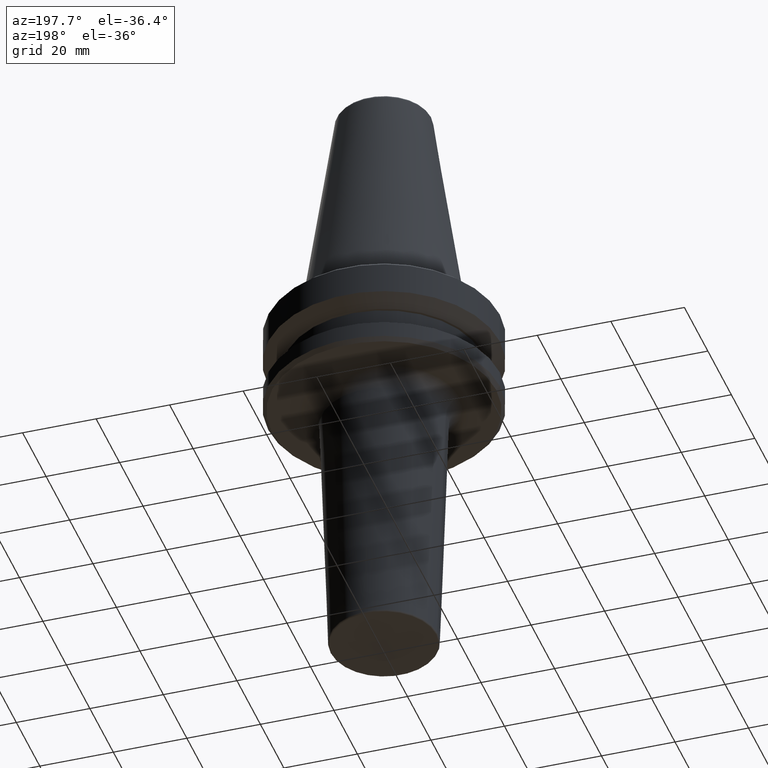
[diagram: clean part render]
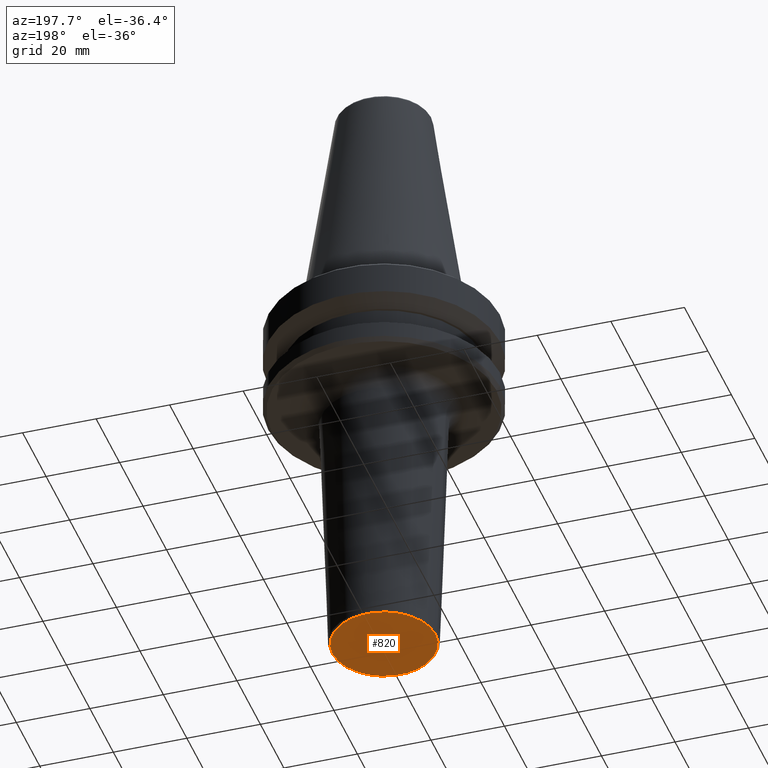
[diagram: same view with one face highlighted and labeled with its STEP entity id]
A machine part, auxiliary view. The second image highlights one B-rep face of the part: STEP entity #820.
In plain terms, the highlighted planar face has unit normal (0, 0, -1).
Its self-contained STEP definition (entity closure, byte-faithful):
#99 = DIRECTION ( 'NONE',  ( 1.000000000000000000, 0.0000000000000000000, 0.0000000000000000000 ) ) ;
#110 = EDGE_LOOP ( 'NONE', ( #336, #546 ) ) ;
#177 = PLANE ( 'NONE',  #954 ) ;
#269 = DIRECTION ( 'NONE',  ( -1.000000000000000000, 0.0000000000000000000, -0.0000000000000000000 ) ) ;
#334 = CIRCLE ( 'NONE', #382, 14.01638896600683800 ) ;
#336 = ORIENTED_EDGE ( 'NONE', *, *, #510, .F. ) ;
#382 = AXIS2_PLACEMENT_3D ( 'NONE', #634, #809, #99 ) ;
#437 = EDGE_CURVE ( 'NONE', #649, #567, #334, .T. ) ;
#475 = DIRECTION ( 'NONE',  ( -0.0000000000000000000, -0.0000000000000000000, 1.000000000000000000 ) ) ;
#505 = DIRECTION ( 'NONE',  ( 0.0000000000000000000, 0.0000000000000000000, -1.000000000000000000 ) ) ;
#510 = EDGE_CURVE ( 'NONE', #567, #649, #950, .T. ) ;
#524 = FACE_OUTER_BOUND ( 'NONE', #110, .T. ) ;
#530 = CARTESIAN_POINT ( 'NONE',  ( -14.01638896600683800, 1.747111763438840500E-015, -167.4000000000080200 ) ) ;
#546 = ORIENTED_EDGE ( 'NONE', *, *, #437, .F. ) ;
#567 = VERTEX_POINT ( 'NONE', #639 ) ;
#581 = CARTESIAN_POINT ( 'NONE',  ( 0.0000000000000000000, 0.0000000000000000000, -167.4000000000080200 ) ) ;
#634 = CARTESIAN_POINT ( 'NONE',  ( 0.0000000000000000000, 0.0000000000000000000, -167.4000000000080200 ) ) ;
#639 = CARTESIAN_POINT ( 'NONE',  ( 14.01638896600683800, 0.0000000000000000000, -167.4000000000080200 ) ) ;
#649 = VERTEX_POINT ( 'NONE', #530 ) ;
#708 = AXIS2_PLACEMENT_3D ( 'NONE', #955, #475, #1031 ) ;
#809 = DIRECTION ( 'NONE',  ( -0.0000000000000000000, -0.0000000000000000000, 1.000000000000000000 ) ) ;
#820 = ADVANCED_FACE ( 'NONE', ( #524 ), #177, .T. ) ;
#950 = CIRCLE ( 'NONE', #708, 14.01638896600683800 ) ;
#954 = AXIS2_PLACEMENT_3D ( 'NONE', #581, #505, #269 ) ;
#955 = CARTESIAN_POINT ( 'NONE',  ( 0.0000000000000000000, 0.0000000000000000000, -167.4000000000080200 ) ) ;
#1031 = DIRECTION ( 'NONE',  ( 1.000000000000000000, 0.0000000000000000000, 0.0000000000000000000 ) ) ;